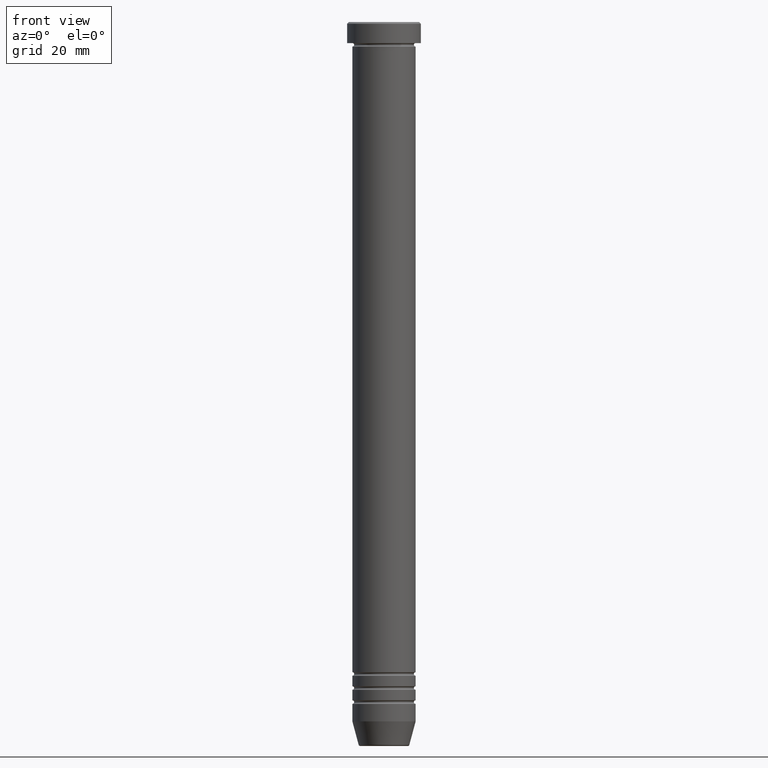
[diagram: clean part render]
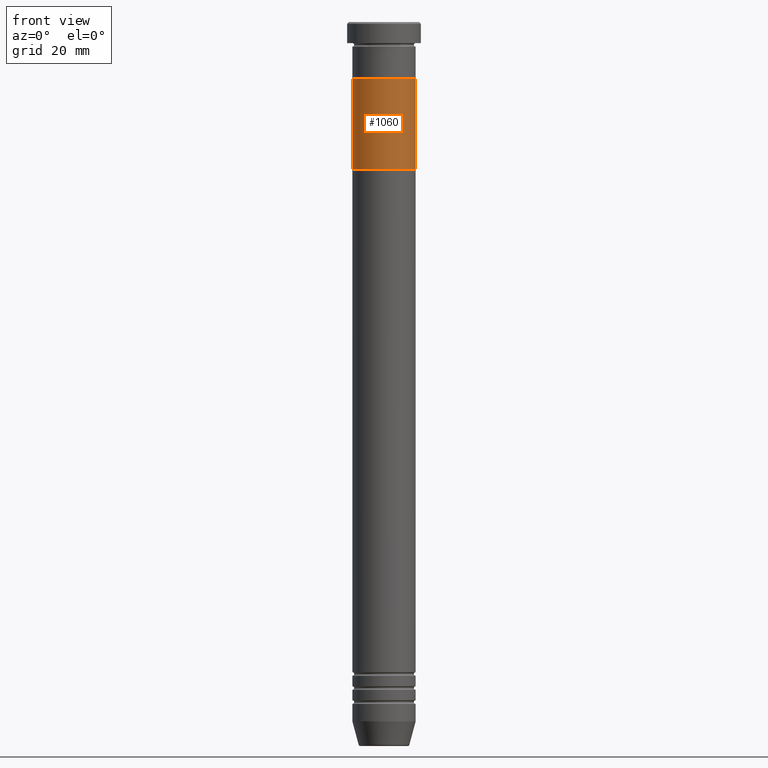
[diagram: same view with one face highlighted and labeled with its STEP entity id]
A machine part, front view. The second image highlights one B-rep face of the part: STEP entity #1060.
In plain terms, the highlighted cylindrical surface (edge-blend (fillet) strip) has radius 9 mm, axis along (-0, -0, 1).
Its self-contained STEP definition (entity closure, byte-faithful):
#40 = DIRECTION ( 'NONE',  ( 0.000000000000000000, 0.000000000000000000, -1.000000000000000000 ) ) ;
#116 = VERTEX_POINT ( 'NONE', #866 ) ;
#231 = LINE ( 'NONE', #780, #456 ) ;
#286 = AXIS2_PLACEMENT_3D ( 'NONE', #420, #858, #1028 ) ;
#313 = VERTEX_POINT ( 'NONE', #512 ) ;
#341 = DIRECTION ( 'NONE',  ( -0.000000000000000000, -0.000000000000000000, 1.000000000000000000 ) ) ;
#364 = AXIS2_PLACEMENT_3D ( 'NONE', #713, #989, #893 ) ;
#376 = EDGE_CURVE ( 'NONE', #116, #455, #886, .T. ) ;
#395 = DIRECTION ( 'NONE',  ( -1.000000000000000000, 0.000000000000000000, 0.000000000000000000 ) ) ;
#410 = LINE ( 'NONE', #963, #629 ) ;
#420 = CARTESIAN_POINT ( 'NONE',  ( 0.000000000000000000, 0.000000000000000000, -41.99999999999999289 ) ) ;
#455 = VERTEX_POINT ( 'NONE', #557 ) ;
#456 = VECTOR ( 'NONE', #521, 1000.000000000000000 ) ;
#491 = CARTESIAN_POINT ( 'NONE',  ( 0.000000000000000000, 0.000000000000000000, -16.00000000000000000 ) ) ;
#512 = CARTESIAN_POINT ( 'NONE',  ( -9.000000000000000000, 1.102182119232617517E-15, -41.99999999999999289 ) ) ;
#521 = DIRECTION ( 'NONE',  ( -0.000000000000000000, -0.000000000000000000, 1.000000000000000000 ) ) ;
#537 = ORIENTED_EDGE ( 'NONE', *, *, #849, .F. ) ;
#557 = CARTESIAN_POINT ( 'NONE',  ( -9.000000000000000000, 1.102182119232617517E-15, -16.00000000000000000 ) ) ;
#582 = EDGE_CURVE ( 'NONE', #715, #116, #410, .T. ) ;
#629 = VECTOR ( 'NONE', #341, 1000.000000000000000 ) ;
#702 = ORIENTED_EDGE ( 'NONE', *, *, #1074, .F. ) ;
#713 = CARTESIAN_POINT ( 'NONE',  ( 0.000000000000000000, 0.000000000000000000, -41.99999999999999289 ) ) ;
#715 = VERTEX_POINT ( 'NONE', #795 ) ;
#780 = CARTESIAN_POINT ( 'NONE',  ( -9.000000000000000000, 1.102182119232617517E-15, -41.99999999999999289 ) ) ;
#795 = CARTESIAN_POINT ( 'NONE',  ( 9.000000000000000000, 0.000000000000000000, -41.99999999999999289 ) ) ;
#832 = ORIENTED_EDGE ( 'NONE', *, *, #376, .T. ) ;
#842 = ORIENTED_EDGE ( 'NONE', *, *, #582, .T. ) ;
#849 = EDGE_CURVE ( 'NONE', #715, #313, #1084, .T. ) ;
#858 = DIRECTION ( 'NONE',  ( -0.000000000000000000, -0.000000000000000000, 1.000000000000000000 ) ) ;
#866 = CARTESIAN_POINT ( 'NONE',  ( 9.000000000000000000, 0.000000000000000000, -16.00000000000000000 ) ) ;
#886 = CIRCLE ( 'NONE', #1048, 9.000000000000000000 ) ;
#893 = DIRECTION ( 'NONE',  ( -1.000000000000000000, 0.000000000000000000, 0.000000000000000000 ) ) ;
#938 = FACE_OUTER_BOUND ( 'NONE', #1108, .T. ) ;
#963 = CARTESIAN_POINT ( 'NONE',  ( 9.000000000000000000, 0.000000000000000000, -41.99999999999999289 ) ) ;
#989 = DIRECTION ( 'NONE',  ( 0.000000000000000000, 0.000000000000000000, -1.000000000000000000 ) ) ;
#1028 = DIRECTION ( 'NONE',  ( 1.000000000000000000, 0.000000000000000000, 0.000000000000000000 ) ) ;
#1048 = AXIS2_PLACEMENT_3D ( 'NONE', #491, #40, #395 ) ;
#1060 = ADVANCED_FACE ( 'NONE', ( #938 ), #1130, .T. ) ;
#1074 = EDGE_CURVE ( 'NONE', #313, #455, #231, .T. ) ;
#1084 = CIRCLE ( 'NONE', #364, 9.000000000000000000 ) ;
#1108 = EDGE_LOOP ( 'NONE', ( #702, #537, #842, #832 ) ) ;
#1130 = CYLINDRICAL_SURFACE ( 'NONE', #286, 9.000000000000000000 ) ;